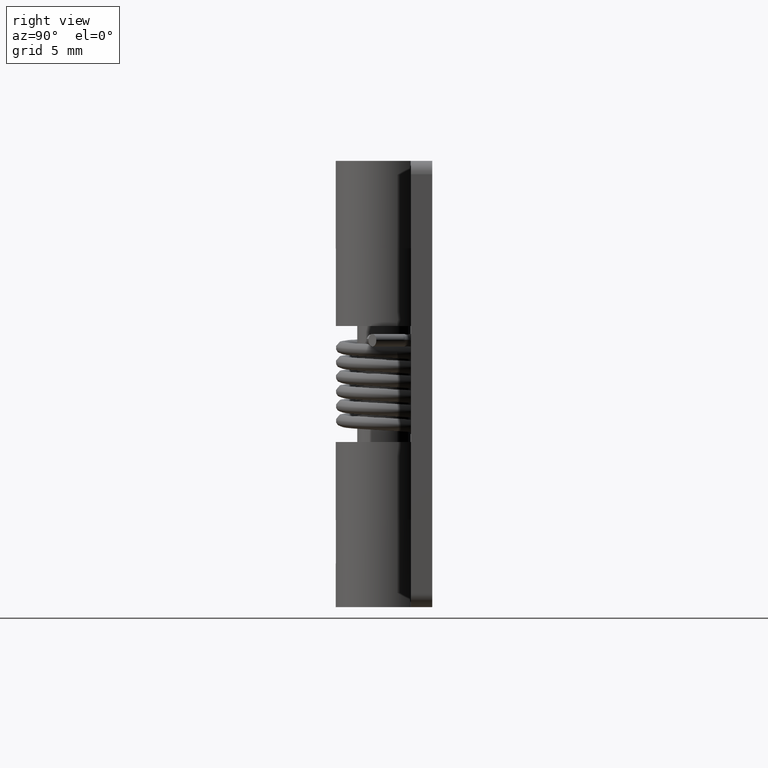
[diagram: clean part render]
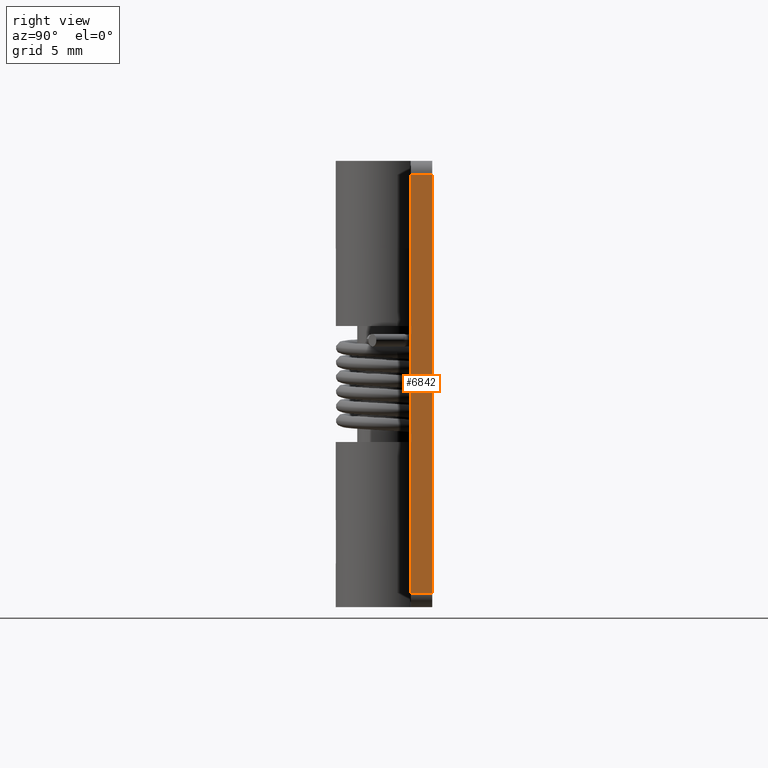
[diagram: same view with one face highlighted and labeled with its STEP entity id]
A machine part, right view. The second image highlights one B-rep face of the part: STEP entity #6842.
In plain terms, the highlighted face is a freeform B-spline surface patch.
Its self-contained STEP definition (entity closure, byte-faithful):
#6227=CARTESIAN_POINT('',(15.999992000000001,1.500000000000055,24.249984999999999));
#6228=VERTEX_POINT('',#6227);
#6244=CARTESIAN_POINT('',(15.999992000000001,2.700005000000000,24.249984999999999));
#6245=VERTEX_POINT('',#6244);
#6246=CARTESIAN_POINT('',(15.999992000000001,2.700005000000000,24.249984999999999));
#6247=CARTESIAN_POINT('',(15.999992000000001,1.500000000000055,24.249984999999999));
#6248=QUASI_UNIFORM_CURVE('',1,(#6246,#6247),.UNSPECIFIED.,.F.,.U.);
#6249=EDGE_CURVE('',#6245,#6228,#6248,.T.);
#6290=CARTESIAN_POINT('',(15.999992000000001,1.500000000000055,0.750000000000000));
#6291=VERTEX_POINT('',#6290);
#6312=CARTESIAN_POINT('',(15.999992000000001,2.700005000000000,0.750000000000000));
#6313=VERTEX_POINT('',#6312);
#6327=CARTESIAN_POINT('',(15.999992000000001,2.700005000000000,0.750000000000000));
#6328=CARTESIAN_POINT('',(15.999992000000001,1.500000000000055,0.750000000000000));
#6329=QUASI_UNIFORM_CURVE('',1,(#6327,#6328),.UNSPECIFIED.,.F.,.U.);
#6330=EDGE_CURVE('',#6313,#6291,#6329,.T.);
#6823=CARTESIAN_POINT('',(15.999992000000001,1.440059752575901,25.423808984601429));
#6824=CARTESIAN_POINT('',(15.999992000000001,1.440059752575901,-0.423824825026376));
#6825=CARTESIAN_POINT('',(15.999992000000001,2.759945279610798,25.423808984601429));
#6826=CARTESIAN_POINT('',(15.999992000000001,2.759945279610798,-0.423824825026376));
#6827=B_SPLINE_SURFACE_WITH_KNOTS('',1,1,((#6823,#6825),(#6824,#6826)),.UNSPECIFIED.,.F.,.F.,.U.,(2,2),(2,2),(0.0,25.847633809627808),(0.041708334948495,0.958291687403247),.UNSPECIFIED.);
#6828=CARTESIAN_POINT('',(15.999992000000001,2.700005000000000,0.750000000000000));
#6829=CARTESIAN_POINT('',(15.999992000000001,2.700005000000000,24.249984999999999));
#6830=QUASI_UNIFORM_CURVE('',1,(#6828,#6829),.UNSPECIFIED.,.F.,.U.);
#6831=EDGE_CURVE('',#6313,#6245,#6830,.T.);
#6832=ORIENTED_EDGE('',*,*,#6831,.T.);
#6833=ORIENTED_EDGE('',*,*,#6249,.T.);
#6834=CARTESIAN_POINT('',(15.999992000000001,1.500000000000055,0.750000000000000));
#6835=CARTESIAN_POINT('',(15.999992000000001,1.500000000000055,24.249984999999999));
#6836=QUASI_UNIFORM_CURVE('',1,(#6834,#6835),.UNSPECIFIED.,.F.,.U.);
#6837=EDGE_CURVE('',#6291,#6228,#6836,.T.);
#6838=ORIENTED_EDGE('',*,*,#6837,.F.);
#6839=ORIENTED_EDGE('',*,*,#6330,.F.);
#6840=EDGE_LOOP('',(#6832,#6833,#6838,#6839));
#6841=FACE_OUTER_BOUND('',#6840,.T.);
#6842=ADVANCED_FACE('',(#6841),#6827,.T.);